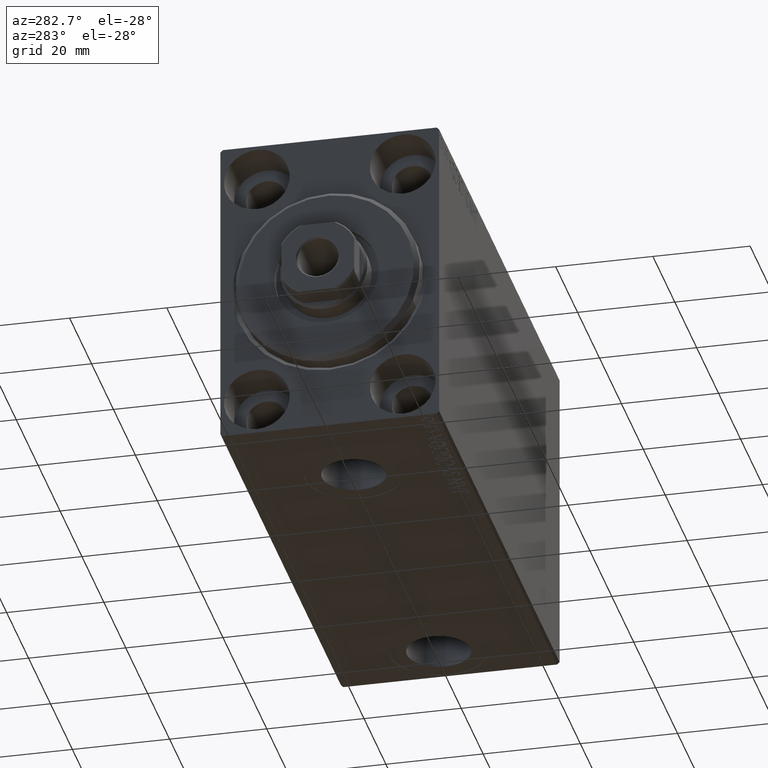
[diagram: clean part render]
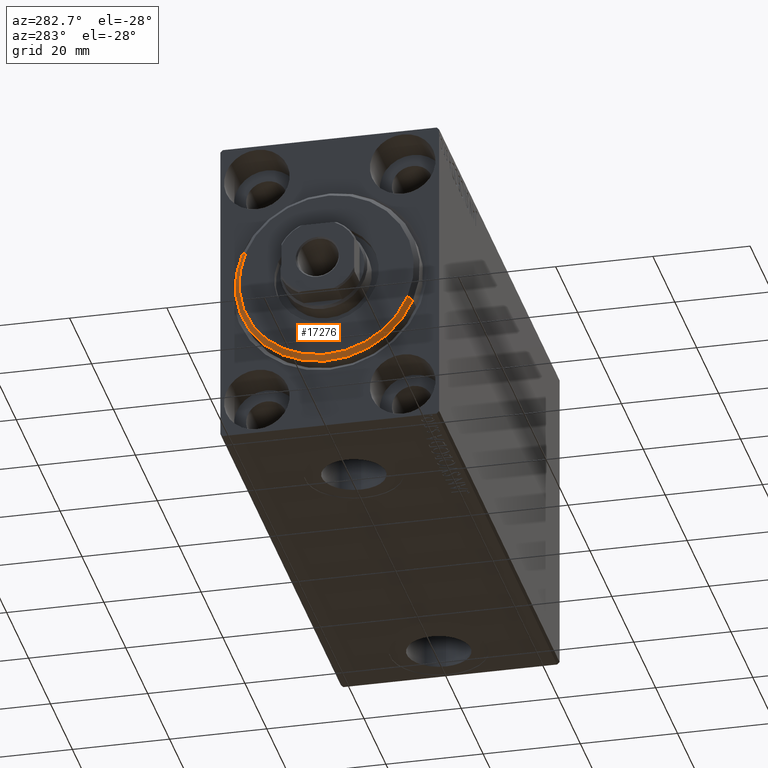
[diagram: same view with one face highlighted and labeled with its STEP entity id]
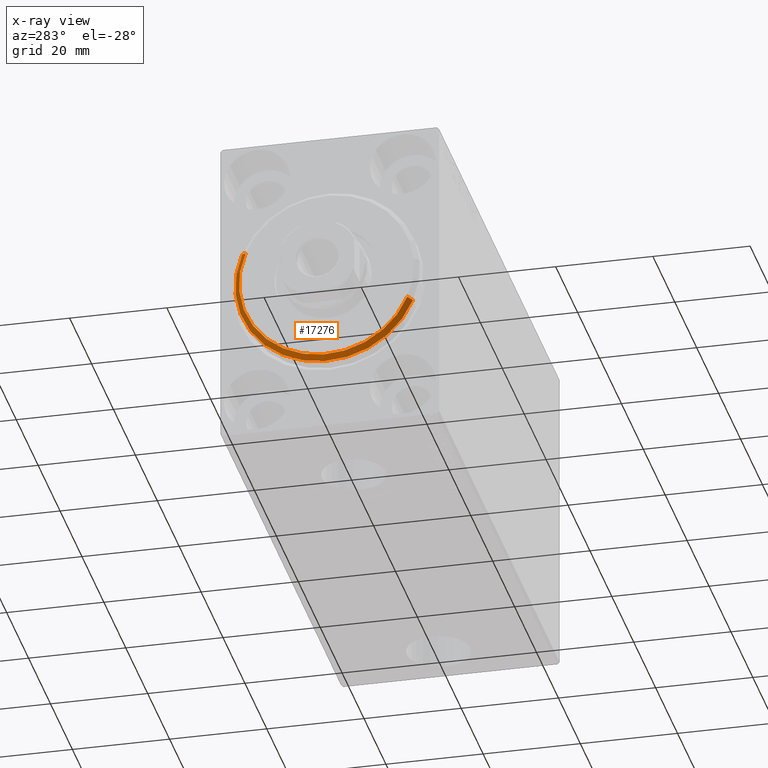
[diagram: x-ray of the same camera — body ghosted, the highlighted face saturated]
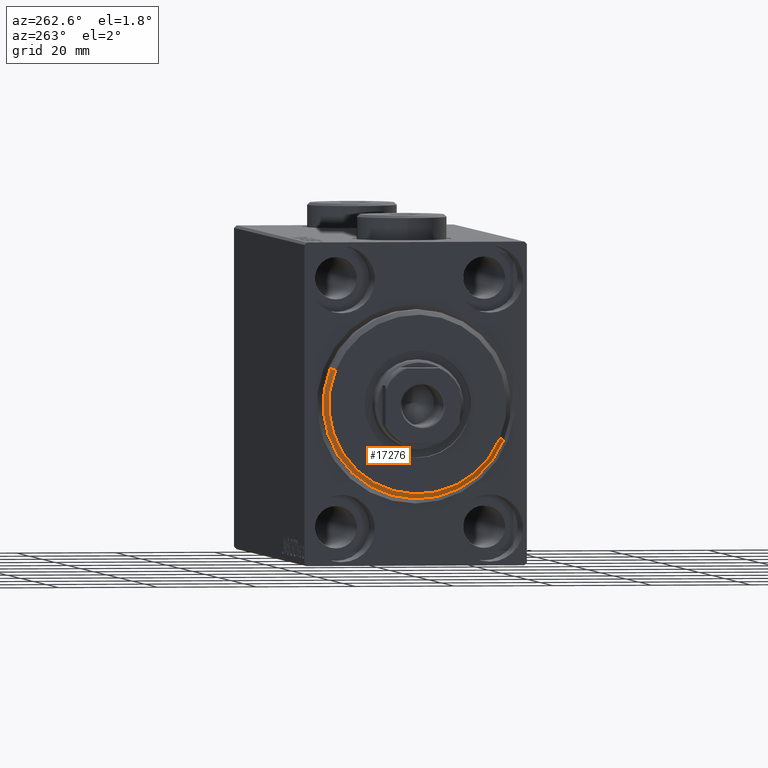
[diagram: same view with one face highlighted and labeled with its STEP entity id]
A machine part, auxiliary view. The second image highlights one B-rep face of the part: STEP entity #17276.
The next image is the same camera in x-ray: the body ghosted, the highlighted face saturated — about 0% of this face is hidden behind the body in this view.
A second angle (auxiliary view) of the same face is appended — the face is thin or edge-on in the first view.
In plain terms, the highlighted conical surface has half-angle 45 deg.
Its self-contained STEP definition (entity closure, byte-faithful):
#508 = EDGE_CURVE ( 'NONE', #32208, #32017, #32307, .T. ) ;
#2922 = AXIS2_PLACEMENT_3D ( 'NONE', #36622, #25642, #19465 ) ;
#3038 = ORIENTED_EDGE ( 'NONE', *, *, #31451, .F. ) ;
#5067 = DIRECTION ( 'NONE',  ( -1.000000000000000000, 0.000000000000000000, 0.000000000000000000 ) ) ;
#6410 = VECTOR ( 'NONE', #36105, 1000.000000000000000 ) ;
#8290 = CARTESIAN_POINT ( 'NONE',  ( 3.000000000000000000, 0.000000000000000000, 0.000000000000000000 ) ) ;
#8509 = CIRCLE ( 'NONE', #39091, 19.00000000000000000 ) ;
#11679 = CARTESIAN_POINT ( 'NONE',  ( 3.000000000000000000, 0.000000000000000000, 17.99999999999999645 ) ) ;
#11950 = DIRECTION ( 'NONE',  ( -1.000000000000000000, 0.000000000000000000, 0.000000000000000000 ) ) ;
#15135 = DIRECTION ( 'NONE',  ( 0.000000000000000000, 0.000000000000000000, -1.000000000000000000 ) ) ;
#16238 = VERTEX_POINT ( 'NONE', #19669 ) ;
#17276 = ADVANCED_FACE ( 'NONE', ( #39622 ), #31671, .T. ) ;
#19465 = DIRECTION ( 'NONE',  ( 0.000000000000000000, 0.000000000000000000, -1.000000000000000000 ) ) ;
#19669 = CARTESIAN_POINT ( 'NONE',  ( 1.999999999999992228, 0.000000000000000000, 19.00000000000000000 ) ) ;
#22578 = CIRCLE ( 'NONE', #2922, 17.99999999999999645 ) ;
#22836 = VERTEX_POINT ( 'NONE', #32285 ) ;
#24164 = EDGE_CURVE ( 'NONE', #16238, #32017, #8509, .T. ) ;
#25555 = ORIENTED_EDGE ( 'NONE', *, *, #41496, .F. ) ;
#25642 = DIRECTION ( 'NONE',  ( 1.000000000000000000, -0.000000000000000000, 0.000000000000000000 ) ) ;
#25807 = LINE ( 'NONE', #11679, #6410 ) ;
#27298 = AXIS2_PLACEMENT_3D ( 'NONE', #8290, #11950, #36396 ) ;
#30243 = DIRECTION ( 'NONE',  ( -0.7071067811865487940, 8.659560562354918067E-17, -0.7071067811865463515 ) ) ;
#31451 = EDGE_CURVE ( 'NONE', #22836, #16238, #25807, .T. ) ;
#31671 = CONICAL_SURFACE ( 'NONE', #27298, 17.99999999999999645, 0.7853981633974466137 ) ;
#31673 = CARTESIAN_POINT ( 'NONE',  ( 1.999999999999992228, 2.326828918379970970E-15, -19.00000000000000000 ) ) ;
#32017 = VERTEX_POINT ( 'NONE', #31673 ) ;
#32208 = VERTEX_POINT ( 'NONE', #44029 ) ;
#32285 = CARTESIAN_POINT ( 'NONE',  ( 3.000000000000000000, 0.000000000000000000, 17.99999999999999645 ) ) ;
#32307 = LINE ( 'NONE', #33446, #33077 ) ;
#32553 = ORIENTED_EDGE ( 'NONE', *, *, #24164, .F. ) ;
#33077 = VECTOR ( 'NONE', #30243, 1000.000000000000000 ) ;
#33446 = CARTESIAN_POINT ( 'NONE',  ( 3.000000000000000000, 2.204364238465235033E-15, -17.99999999999999645 ) ) ;
#36105 = DIRECTION ( 'NONE',  ( -0.7071067811865487940, 0.000000000000000000, 0.7071067811865463515 ) ) ;
#36396 = DIRECTION ( 'NONE',  ( 0.000000000000000000, 0.000000000000000000, 1.000000000000000000 ) ) ;
#36622 = CARTESIAN_POINT ( 'NONE',  ( 3.000000000000000000, 0.000000000000000000, 0.000000000000000000 ) ) ;
#39091 = AXIS2_PLACEMENT_3D ( 'NONE', #39380, #5067, #15135 ) ;
#39380 = CARTESIAN_POINT ( 'NONE',  ( 1.999999999999992228, 0.000000000000000000, 0.000000000000000000 ) ) ;
#39622 = FACE_OUTER_BOUND ( 'NONE', #42124, .T. ) ;
#41496 = EDGE_CURVE ( 'NONE', #32208, #22836, #22578, .T. ) ;
#42124 = EDGE_LOOP ( 'NONE', ( #25555, #44360, #32553, #3038 ) ) ;
#44029 = CARTESIAN_POINT ( 'NONE',  ( 3.000000000000000000, 2.265596578422603002E-15, -17.99999999999999645 ) ) ;
#44360 = ORIENTED_EDGE ( 'NONE', *, *, #508, .T. ) ;